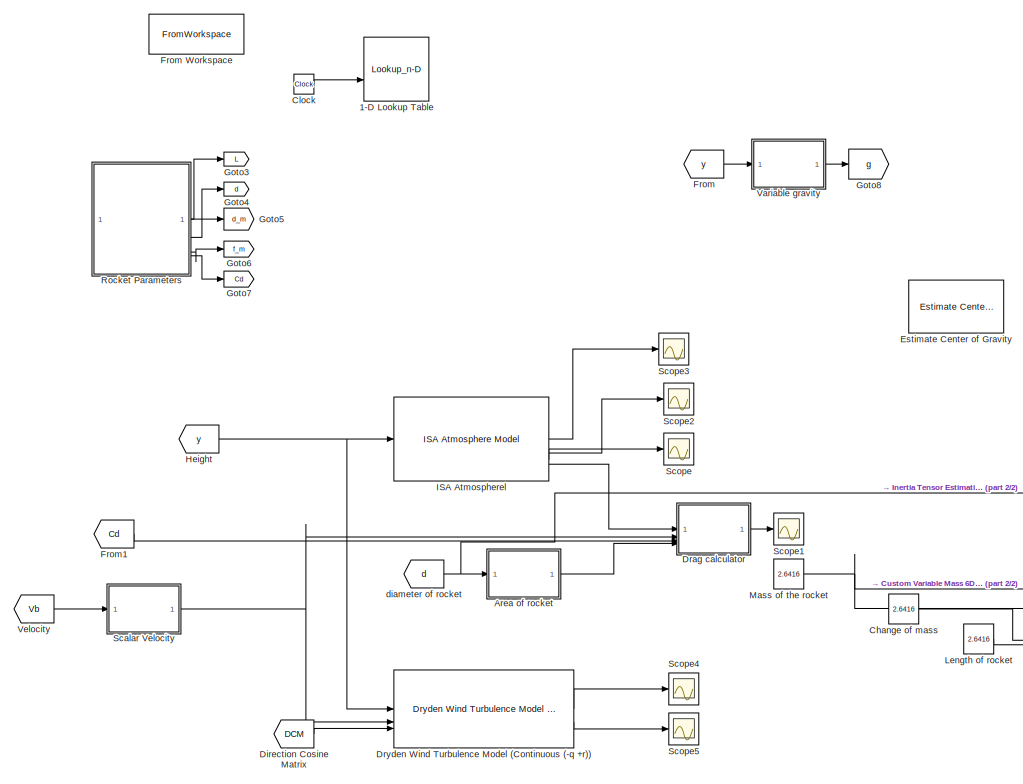
[diagram: root canvas - part 1/2, left side, full height]
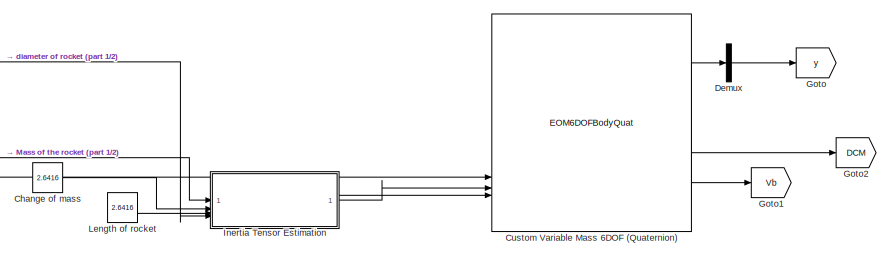
[diagram: root canvas - part 2/2, bottom right region]
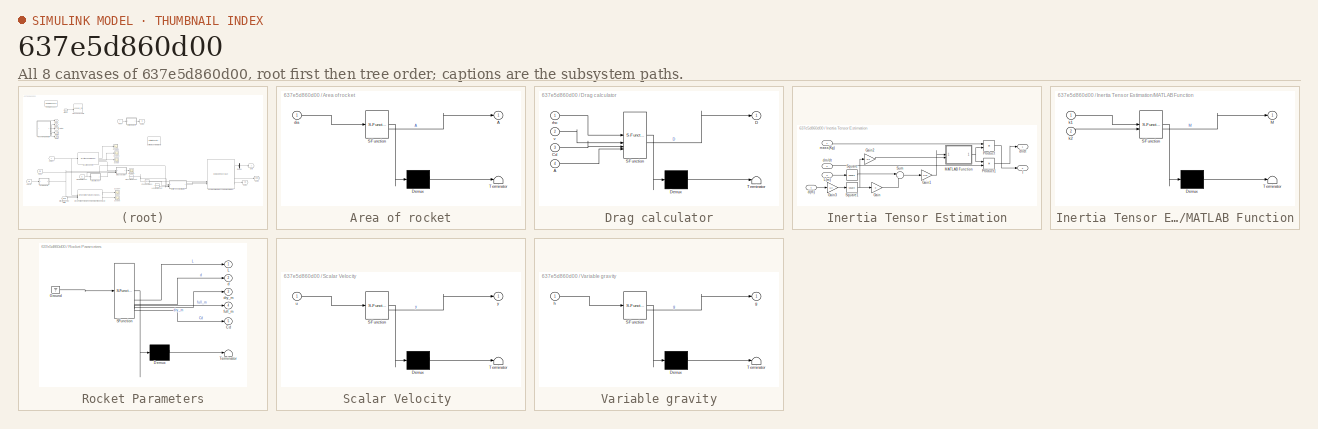
[diagram: thumbnail index - all 8 canvases of the model, root first then tree order]
MODEL slx_637e5d860d00
KIND model
CONFIG AbsTol = auto
CONFIG EnableMultiTasking = off
CONFIG FixedStep = auto
CONFIG MaxStep = auto
CONFIG MinStep = auto
CONFIG RelTol = 1e-3
CONFIG SampleTimeConstraint = Unconstrained
CONFIG SolverName = VariableStepAuto
CONFIG StartTime = 0.0
CONFIG StopTime = 60
BLOCK [Lookup_n-D] 1-D Lookup Table
  BreakpointsForDimension1 = [-5:5]
  BreakpointsForDimension1Source = Input port
  InputPortMap = u0,p5
  InternalRulePriority = Speed
  NumberOfTableDimensions = 1
  RndMeth = Simplest
  Table = thrust
BLOCK [SubSystem] Area of rocket
  ErrorFcn = Stateflow.Translate.translate
  PermitHierarchicalResolution = ExplicitOnly
  SFBlockType = MATLAB Function
  TreatAsAtomicUnit = on
BLOCK [Demux] Area of rocket/ Demux 
  Outputs = 1
BLOCK [S-Function] Area of rocket/ SFunction 
  EnableBusSupport = off
  FunctionName = sf_sfun
  PortCounts = [1 2]
  SFcnIsStateOwnerBlock = off
  SFunctionDeploymentMode = off
  Tag = Stateflow S-Function 3
BLOCK [Terminator] Area of rocket/ Terminator 
BLOCK [Outport] Area of rocket/A
BLOCK [Inport] Area of rocket/dia
BLOCK [Constant] Change of mass
  Value = 2.6416
BLOCK [Clock] Clock
  DisplayTime = on
BLOCK [EOM6DOFBodyQuat] Custom Variable Mass 6DOF (Quaternion)
  mtype = Custom Variable
BLOCK [Demux] Demux
  Outputs = 3
BLOCK [From] Direction Cosine Matrix
  GotoTag = DCM
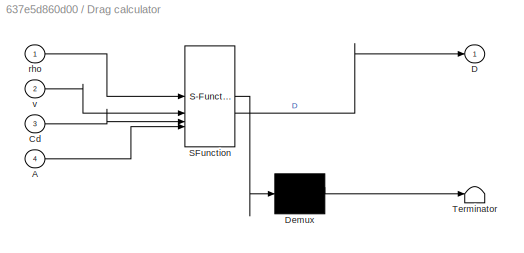
BLOCK [SubSystem] Drag calculator
  ErrorFcn = Stateflow.Translate.translate
  PermitHierarchicalResolution = ExplicitOnly
  SFBlockType = MATLAB Function
  TreatAsAtomicUnit = on
BLOCK [Demux] Drag calculator/ Demux 
  Outputs = 1
BLOCK [S-Function] Drag calculator/ SFunction 
  EnableBusSupport = off
  FunctionName = sf_sfun
  PortCounts = [4 2]
  SFcnIsStateOwnerBlock = off
  SFunctionDeploymentMode = off
  Tag = Stateflow S-Function 2
BLOCK [Terminator] Drag calculator/ Terminator 
BLOCK [Inport] Drag calculator/A
  Port = 4
BLOCK [Inport] Drag calculator/Cd
  Port = 3
BLOCK [Outport] Drag calculator/D
BLOCK [Inport] Drag calculator/rho
BLOCK [Inport] Drag calculator/v
  Port = 2
BLOCK [Reference] Dryden Wind Turbulence Model (Continuous (-q +r))  REF=aerolibwind2/Dryden Wind Turbulence Model 
(Continuous (+q -r))
  LibrarySourceBlock = aerolibwind2/Dryden Wind Turbulence Model \n(Continuous (-q +r))
  SourceBlock = aerolibwind2/Dryden Wind Turbulence Model \n(Continuous (+q -r))
  SourceType = Wind Turbulence Model
BLOCK [Reference] Estimate Center of Gravity  REF=aerolibbdyn/Estimate
Center of Gravity
  SourceBlock = aerolibbdyn/Estimate\nCenter of Gravity
  SourceType = Estimate Center of Gravity
BLOCK [From] From
  GotoTag = y
BLOCK [FromWorkspace] From Workspace
  VariableName = thrust_profile.csv
BLOCK [From] From1
  GotoTag = Cd
BLOCK [Goto] Goto
  GotoTag = y
BLOCK [Goto] Goto1
  GotoTag = Vb
BLOCK [Goto] Goto2
  GotoTag = DCM
BLOCK [Goto] Goto3
  GotoTag = L
BLOCK [Goto] Goto4
  GotoTag = d
BLOCK [Goto] Goto5
  GotoTag = d_m
BLOCK [Goto] Goto6
  GotoTag = f_m
BLOCK [Goto] Goto7
  GotoTag = Cd
BLOCK [Goto] Goto8
  GotoTag = g
BLOCK [From] Height
  GotoTag = y
BLOCK [Reference] ISA Atmospherel  REF=aerolibatmos2/ISA Atmosphere Model
  SourceBlock = aerolibatmos2/ISA Atmosphere Model
  SourceType = International Standard Atmosphere Model
BLOCK [SubSystem] Inertia Tensor Estimation
BLOCK [Gain] Inertia Tensor Estimation/Gain
  Gain = 3
BLOCK [Gain] Inertia Tensor Estimation/Gain1
  Gain = 1/12
BLOCK [Gain] Inertia Tensor Estimation/Gain2
  Gain = 1/2
BLOCK [Gain] Inertia Tensor Estimation/Gain3
  Gain = 1/2
BLOCK [Outport] Inertia Tensor Estimation/I
  IconDisplay = Signal name
  Port = 2
BLOCK [Inport] Inertia Tensor Estimation/L(m)
  IconDisplay = Signal name
  Port = 3
BLOCK [SubSystem] Inertia Tensor Estimation/MATLAB Function
  ErrorFcn = Stateflow.Translate.translate
  PermitHierarchicalResolution = ExplicitOnly
  SFBlockType = MATLAB Function
  TreatAsAtomicUnit = on
BLOCK [Demux] Inertia Tensor Estimation/MATLAB Function/ Demux 
  Outputs = 1
BLOCK [S-Function] Inertia Tensor Estimation/MATLAB Function/ SFunction 
  EnableBusSupport = off
  FunctionName = sf_sfun
  PortCounts = [2 2]
  SFcnIsStateOwnerBlock = off
  SFunctionDeploymentMode = off
  Tag = Stateflow S-Function 4
BLOCK [Terminator] Inertia Tensor Estimation/MATLAB Function/ Terminator 
BLOCK [Outport] Inertia Tensor Estimation/MATLAB Function/M
BLOCK [Inport] Inertia Tensor Estimation/MATLAB Function/k1
BLOCK [Inport] Inertia Tensor Estimation/MATLAB Function/k2
  Port = 2
BLOCK [Product] Inertia Tensor Estimation/Product
BLOCK [Product] Inertia Tensor Estimation/Product1
BLOCK [Math] Inertia Tensor Estimation/Square
  Operator = square
BLOCK [Math] Inertia Tensor Estimation/Square1
  Operator = square
BLOCK [Sum] Inertia Tensor Estimation/Sum
  Inputs = |++
BLOCK [Inport] Inertia Tensor Estimation/d(m)
  IconDisplay = Signal name
  Port = 4
BLOCK [Outport] Inertia Tensor Estimation/dI//dt
  IconDisplay = Signal name
BLOCK [Inport] Inertia Tensor Estimation/dm//dt
  IconDisplay = Signal name
  Port = 2
BLOCK [Inport] Inertia Tensor Estimation/mass(Kg)
  IconDisplay = Signal name
BLOCK [Constant] Length of rocket
  Value = 2.6416
BLOCK [Constant] Mass of the rocket
  Value = 2.6416
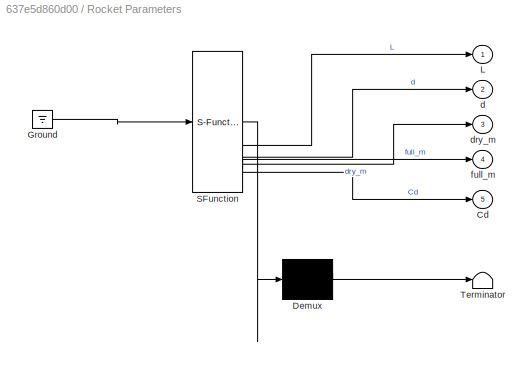
BLOCK [SubSystem] Rocket Parameters
  ErrorFcn = Stateflow.Translate.translate
  PermitHierarchicalResolution = ExplicitOnly
  SFBlockType = MATLAB Function
  TreatAsAtomicUnit = on
BLOCK [Demux] Rocket Parameters/ Demux 
  Outputs = 1
BLOCK [Ground] Rocket Parameters/ Ground 
BLOCK [S-Function] Rocket Parameters/ SFunction 
  EnableBusSupport = off
  FunctionName = sf_sfun
  PortCounts = [1 6]
  SFcnIsStateOwnerBlock = off
  SFunctionDeploymentMode = off
  Tag = Stateflow S-Function 6
BLOCK [Terminator] Rocket Parameters/ Terminator 
BLOCK [Outport] Rocket Parameters/Cd
  Port = 5
BLOCK [Outport] Rocket Parameters/L
BLOCK [Outport] Rocket Parameters/d
  Port = 2
BLOCK [Outport] Rocket Parameters/dry_m
  Port = 3
BLOCK [Outport] Rocket Parameters/full_m
  Port = 4
BLOCK [SubSystem] Scalar Velocity 
  ErrorFcn = Stateflow.Translate.translate
  PermitHierarchicalResolution = ExplicitOnly
  SFBlockType = MATLAB Function
  TreatAsAtomicUnit = on
BLOCK [Demux] Scalar Velocity / Demux 
  Outputs = 1
BLOCK [S-Function] Scalar Velocity / SFunction 
  EnableBusSupport = off
  FunctionName = sf_sfun
  PortCounts = [1 2]
  SFcnIsStateOwnerBlock = off
  SFunctionDeploymentMode = off
  Tag = Stateflow S-Function 1
BLOCK [Terminator] Scalar Velocity / Terminator 
BLOCK [Inport] Scalar Velocity /u
BLOCK [Outport] Scalar Velocity /y
BLOCK [Scope] Scope
  ActiveDisplayYMaximum = 101340.00921467897
  ActiveDisplayYMinimum = 101189.91706788937
  ContainerLayout = {"WindowBounds":[1280,1363,429,765],"gridDimensions":{"w":1,"h":1},"tileCount":1,"tileCoverage":1,"columnWeights":1,"rowWeights":1,"tileOccupancy":{"children":[{"id":"/Scope3"},{"id":"/Scope2"},{"id":"/Scope"},{"id":"/Scope4"},{"id":"/Scope5"}]}}  <repeated x5 — deduplicated; at blocks: Scope, Scope2, Scope3, Scope4, Scope5>
  Floating = off
  GraphicalSettings = {"Style":{"BackgroundColor":[0.12941176470588237,0.12941176470588237,0.12941176470588237],"AxesColor":[0.07058823529411765,0.07058823529411765,0.07058823529411765],"LabelsColor":[0.8509803921568627,0.8509803921568627,0.8509803921568627],"PreserveColors":false,"Visible":[true],"LineStyle":["-"],"LineWidth":[1.5],"BarWidth":[0.9],"LineColor":["auto"],"LineFaceAlpha":[1],"LineEdgeAlpha":[1],"Marker":...<+2033ch>
  MultipleDisplayCache = [{"MaxYLimMag":101340.00921467897,"MaxYLimReal":101340.00921467897,"MinYLimMag":101189.91706788937,"MinYLimReal":101189.91706788937,"PlotAsMagnitudePhase":false,"ShowGrid":true,"ShowLegend":false,"Title":"%<SignalLabel>","YLabel":""}]
  NumInputPorts = 1
  Visible = on
  WasSavedAsWebScope = on
  WindowPosition = [1280.000000,273.000000,431.000000,768.000000,]
BLOCK [Scope] Scope1
  ActiveDisplayYMaximum = 101340.00921467897
  ActiveDisplayYMinimum = 101189.91706788937
  ContainerLayout = {"WindowBounds":[1280,1363,429,765],"gridDimensions":{"w":1,"h":1},"tileCount":1,"tileCoverage":1,"columnWeights":1,"rowWeights":1,"tileOccupancy":{"children":[{"id":"/Scope3"},{"id":"/Scope2"},{"id":"/Scope"}]}}
  DataLoggingVariableName = ScopeData1
  Floating = off
  GraphicalSettings = {"Style":{"BackgroundColor":[0.12941176470588237,0.12941176470588237,0.12941176470588237],"AxesColor":[0.07058823529411765,0.07058823529411765,0.07058823529411765],"LabelsColor":[0.8509803921568627,0.8509803921568627,0.8509803921568627],"PreserveColors":false,"Visible":[true],"LineStyle":["-"],"LineWidth":[1.5],"BarWidth":[0.9],"LineColor":["auto"],"LineFaceAlpha":[1],"LineEdgeAlpha":[1],"Marker":...<+2038ch>
  MultipleDisplayCache = [{"MaxYLimMag":101340.00921467897,"MaxYLimReal":101340.00921467897,"MinYLimMag":101189.91706788937,"MinYLimReal":101189.91706788937,"PlotAsMagnitudePhase":false,"ShowGrid":true,"ShowLegend":false,"Title":"%<SignalLabel>","YLabel":""}]
  NumInputPorts = 1
  WasSavedAsWebScope = on
  WindowPosition = [1280.000000,273.000000,431.000000,768.000000,]
BLOCK [Scope] Scope2
  ActiveDisplayYMaximum = 340.29892228332653
  ActiveDisplayYMinimum = 340.25094300687613
  DataLoggingVariableName = ScopeData2
  Floating = off
  GraphicalSettings = {"Style":{"BackgroundColor":[0.12941176470588237,0.12941176470588237,0.12941176470588237],"AxesColor":[0.07058823529411765,0.07058823529411765,0.07058823529411765],"LabelsColor":[0.8509803921568627,0.8509803921568627,0.8509803921568627],"PreserveColors":false,"Visible":[true],"LineStyle":["-"],"LineWidth":[1.5],"BarWidth":[0.9],"LineColor":["auto"],"LineFaceAlpha":[1],"LineEdgeAlpha":[1],"Marker":...<+2029ch>
  MultipleDisplayCache = [{"MaxYLimMag":340.29892228332653,"MaxYLimReal":340.29892228332653,"MinYLimMag":340.25094300687613,"MinYLimReal":340.25094300687613,"PlotAsMagnitudePhase":false,"ShowGrid":true,"ShowLegend":false,"Title":"%<SignalLabel>","YLabel":""}]
  NumInputPorts = 1
  Visible = on
  WasSavedAsWebScope = on
  WindowPosition = [1280.000000,273.000000,431.000000,768.000000,]
BLOCK [Scope] Scope3
  ActiveDisplayYMaximum = 288.158125
  ActiveDisplayYMinimum = 288.076875
  DataLoggingVariableName = ScopeData3
  Floating = off
  GraphicalSettings = {"Style":{"BackgroundColor":[0.12941176470588237,0.12941176470588237,0.12941176470588237],"AxesColor":[0.07058823529411765,0.07058823529411765,0.07058823529411765],"LabelsColor":[0.8509803921568627,0.8509803921568627,0.8509803921568627],"PreserveColors":false,"Visible":[true],"LineStyle":["-"],"LineWidth":[1.5],"BarWidth":[0.9],"LineColor":["auto"],"LineFaceAlpha":[1],"LineEdgeAlpha":[1],"Marker":...<+1969ch>
  MultipleDisplayCache = [{"MaxYLimMag":288.158125,"MaxYLimReal":288.158125,"MinYLimMag":288.076875,"MinYLimReal":288.076875,"PlotAsMagnitudePhase":false,"ShowGrid":true,"ShowLegend":false,"Title":"%<SignalLabel>","YLabel":""}]
  NumInputPorts = 1
  Visible = on
  WasSavedAsWebScope = on
  WindowPosition = [1280.000000,273.000000,431.000000,768.000000,]
BLOCK [Scope] Scope4
  ActiveDisplayYMaximum = 6.2761631966690334
  ActiveDisplayYMinimum = -5.0798651721078141
  DataLoggingVariableName = ScopeData4
  Floating = off
  GraphicalSettings = {"Style":{"BackgroundColor":[0.12941176470588237,0.12941176470588237,0.12941176470588237],"AxesColor":[0.07058823529411765,0.07058823529411765,0.07058823529411765],"LabelsColor":[0.8509803921568627,0.8509803921568627,0.8509803921568627],"PreserveColors":false,"Visible":[true,true,true],"LineStyle":["-","-","-"],"LineWidth":[1.5,1.5,1.5],"BarWidth":[0.9,0.9,0.9],"LineColor":["auto","auto","auto"],"...<+2209ch>
  MultipleDisplayCache = [{"MaxYLimMag":6.2761631966690334,"MaxYLimReal":6.2761631966690334,"MinYLimMag":0,"MinYLimReal":-5.0798651721078141,"PlotAsMagnitudePhase":false,"ShowGrid":true,"ShowLegend":false,"Title":"%<SignalLabel>","YLabel":""}]
  NumInputPorts = 1
  Visible = on
  WasSavedAsWebScope = on
  WindowPosition = [1280.000000,273.000000,431.000000,768.000000,]
BLOCK [Scope] Scope5
  ActiveDisplayYMaximum = 0.50877727433739572
  ActiveDisplayYMinimum = -0.4513348332530695
  DataLoggingVariableName = ScopeData5
  Floating = off
  GraphicalSettings = {"Style":{"BackgroundColor":[0.12941176470588237,0.12941176470588237,0.12941176470588237],"AxesColor":[0.07058823529411765,0.07058823529411765,0.07058823529411765],"LabelsColor":[0.8509803921568627,0.8509803921568627,0.8509803921568627],"PreserveColors":false,"Visible":[true,true,true],"LineStyle":["-","-","-"],"LineWidth":[1.5,1.5,1.5],"BarWidth":[0.9,0.9,0.9],"LineColor":["auto","auto","auto"],"...<+2379ch>
  MultipleDisplayCache = [{"MaxYLimMag":0.50877727433739572,"MaxYLimReal":0.50877727433739572,"MinYLimMag":0,"MinYLimReal":-0.4513348332530695,"PlotAsMagnitudePhase":false,"ShowGrid":true,"ShowLegend":false,"Title":"%<SignalLabel>","YLabel":""}]
  NumInputPorts = 1
  Visible = on
  WasSavedAsWebScope = on
  WindowPosition = [1280.000000,273.000000,431.000000,768.000000,]
BLOCK [SubSystem] Variable gravity
  ErrorFcn = Stateflow.Translate.translate
  PermitHierarchicalResolution = ExplicitOnly
  SFBlockType = MATLAB Function
  TreatAsAtomicUnit = on
BLOCK [Demux] Variable gravity/ Demux 
  Outputs = 1
BLOCK [S-Function] Variable gravity/ SFunction 
  EnableBusSupport = off
  FunctionName = sf_sfun
  PortCounts = [1 2]
  SFcnIsStateOwnerBlock = off
  SFunctionDeploymentMode = off
  Tag = Stateflow S-Function 5
BLOCK [Terminator] Variable gravity/ Terminator 
BLOCK [Outport] Variable gravity/g
BLOCK [Inport] Variable gravity/h
BLOCK [From] Velocity
  GotoTag = Vb
BLOCK [From] diameter of rocket
  GotoTag = d
LINE Area of rocket:1 -> Drag calculator:4
LINE Change of mass:1 -> Inertia Tensor Estimation:2
LINE Clock:1 -> 1-D Lookup Table:2
LINE Custom Variable Mass 6DOF (Quaternion):2 -> Demux:1
LINE Custom Variable Mass 6DOF (Quaternion):5 -> Goto2:1
LINE Custom Variable Mass 6DOF (Quaternion):6 -> Goto1:1
LINE Demux:2 -> Goto:1
LINE Direction Cosine Matrix:1 -> Dryden Wind Turbulence Model (Continuous (-q +r)):3
LINE Drag calculator:1 -> Scope1:1
LINE Dryden Wind Turbulence Model (Continuous (-q +r)):1 -> Scope4:1
LINE Dryden Wind Turbulence Model (Continuous (-q +r)):2 -> Scope5:1
LINE From1:1 -> Drag calculator:3
LINE From:1 -> Variable gravity:1
NET Height:1 -> Dryden Wind Turbulence Model (Continuous (-q +r)):1, ISA Atmospherel:1
LINE ISA Atmospherel:1 -> Scope3:1
LINE ISA Atmospherel:2 -> Scope2:1
LINE ISA Atmospherel:3 -> Scope:1
LINE ISA Atmospherel:4 -> Drag calculator:1
LINE Inertia Tensor Estimation/Gain1:1 -> Inertia Tensor Estimation/MATLAB Function:1
LINE Inertia Tensor Estimation/Gain2:1 -> Inertia Tensor Estimation/MATLAB Function:2
LINE Inertia Tensor Estimation/Gain3:1 -> Inertia Tensor Estimation/Square1:1
LINE Inertia Tensor Estimation/Gain:1 -> Inertia Tensor Estimation/Sum:2
LINE Inertia Tensor Estimation/L(m):1 -> Inertia Tensor Estimation/Square:1
NET Inertia Tensor Estimation/MATLAB Function:1 -> Inertia Tensor Estimation/Product1:1, Inertia Tensor Estimation/Product:2
LINE Inertia Tensor Estimation/Product1:1 -> Inertia Tensor Estimation/dI//dt:1
LINE Inertia Tensor Estimation/Product:1 -> Inertia Tensor Estimation/I:1
NET Inertia Tensor Estimation/Square1:1 -> Inertia Tensor Estimation/Gain2:1, Inertia Tensor Estimation/Gain:1
LINE Inertia Tensor Estimation/Square:1 -> Inertia Tensor Estimation/Sum:1
LINE Inertia Tensor Estimation/Sum:1 -> Inertia Tensor Estimation/Gain1:1
LINE Inertia Tensor Estimation/d(m):1 -> Inertia Tensor Estimation/Gain3:1
LINE Inertia Tensor Estimation/dm//dt:1 -> Inertia Tensor Estimation/Product1:2
LINE Inertia Tensor Estimation/mass(Kg):1 -> Inertia Tensor Estimation/Product:1
LINE Inertia Tensor Estimation:1 -> Custom Variable Mass 6DOF (Quaternion):4
LINE Inertia Tensor Estimation:2 -> Custom Variable Mass 6DOF (Quaternion):5
LINE Length of rocket:1 -> Inertia Tensor Estimation:3
NET Mass of the rocket:1 -> Custom Variable Mass 6DOF (Quaternion):3, Inertia Tensor Estimation:1
LINE Rocket Parameters:1 -> Goto3:1
LINE Rocket Parameters:2 -> Goto4:1
LINE Rocket Parameters:3 -> Goto5:1
LINE Rocket Parameters:4 -> Goto6:1
LINE Rocket Parameters:5 -> Goto7:1
NET Scalar Velocity :1 -> Drag calculator:2, Dryden Wind Turbulence Model (Continuous (-q +r)):2
LINE Variable gravity:1 -> Goto8:1
LINE Velocity:1 -> Scalar Velocity :1
NET diameter of rocket:1 -> Area of rocket:1, Inertia Tensor Estimation:4
note: NET lines group one-source signal fan-out (src -> all destinations, sorted); 1:1 wires keep LINE
CHART Scalar Velocity  states=1 transitions=1
  STATE_LABEL 'eML_blk_kernel()'
  STATE_LABEL 'SCRIPT:\nfunction y = magnitude(u)\n    y = norm(u);\n'
CHART Drag calculator states=1 transitions=1
  STATE_LABEL 'eML_blk_kernel()'
  STATE_LABEL 'SCRIPT:\nfunction D = drag(rho, v, Cd, A)\n    D = 0.5 * rho * v^2 * Cd * A;\n'
CHART Area of rocket states=1 transitions=1
  STATE_LABEL 'eML_blk_kernel()'
  STATE_LABEL 'SCRIPT:\nfunction A = area(dia)\n    A = pi*((dia)^2)/4;\n'
CHART Inertia Tensor Estimation/MATLAB Function states=1 transitions=1
  STATE_LABEL 'eML_blk_kernel()'
  STATE_LABEL 'SCRIPT:\nfunction M =diag_mat(k1, k2)\n    M = diag([k1,k1,k2]);\n'
CHART Variable gravity states=1 transitions=1
  STATE_LABEL 'eML_blk_kernel()'
  STATE_LABEL 'SCRIPT:\nfunction g = g(h)\n    % h is altitude in meters\n    R = 6.371e6;          % Earth radius in meters\n    g0 = 9.80665;         % Standard gravity in m/s^2\n    g = g0 * (R / (R + h))^2;'
CHART Rocket Parameters states=1 transitions=1
  STATE_LABEL 'eML_blk_kernel()'
  STATE_LABEL 'SCRIPT:\nfunction [L, d, dry_m, full_m, Cd] = param()\n    L = 2.6416; % Length in meters (104 in)\n    d = 0.1524; % Diameter in meters (6 in)\n    dry_m = 17.190; % mass in Kg\n    full_m = 23.872; % mass in Kg\n    Cd = 1; % Drag coefficient unitless\n\n'
CHART  states=0 transitions=0
CHART  states=0 transitions=0
CHART  states=0 transitions=0
CHART  states=0 transitions=0
CHART  states=0 transitions=0
CHART  states=0 transitions=0
